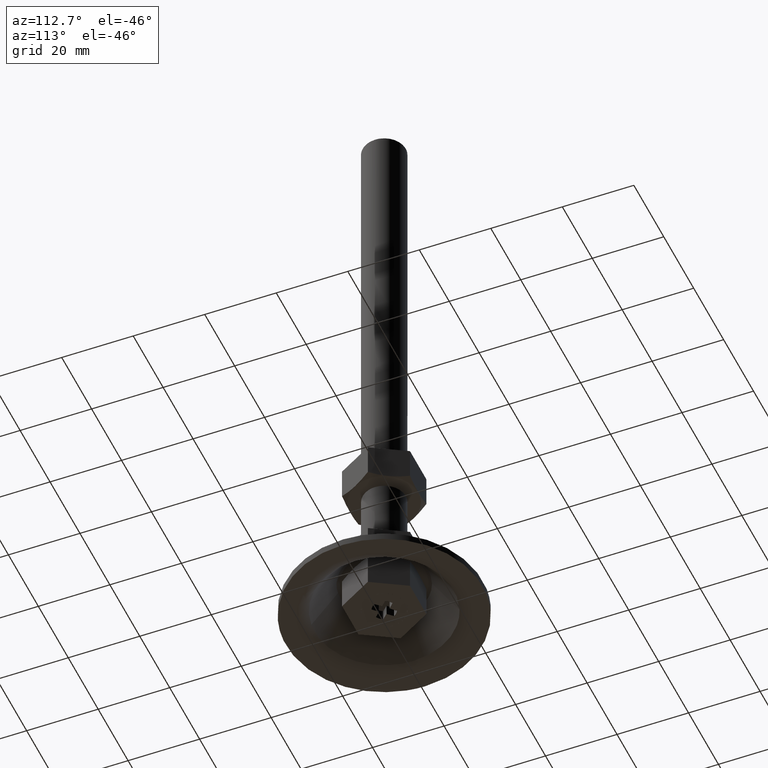
[diagram: clean part render]
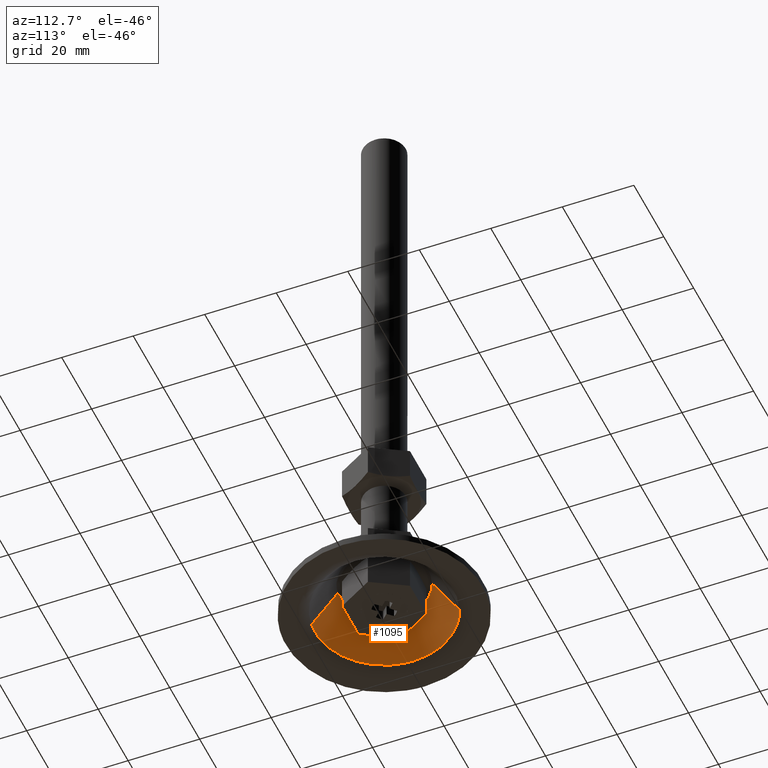
[diagram: same view with one face highlighted and labeled with its STEP entity id]
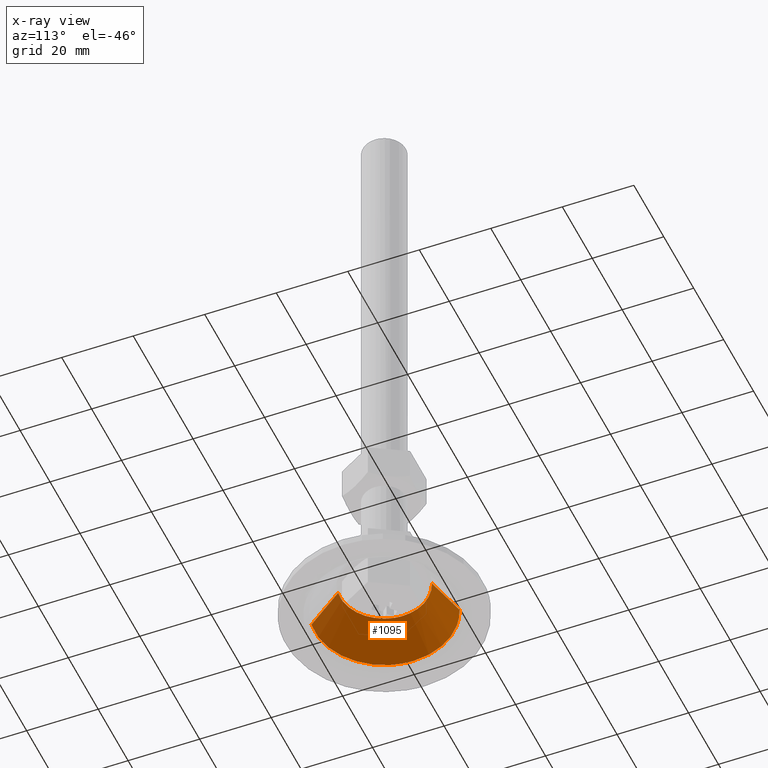
[diagram: x-ray of the same camera — body ghosted, the highlighted face saturated]
A machine part, auxiliary view. The second image highlights one B-rep face of the part: STEP entity #1095.
The next image is the same camera in x-ray: the body ghosted, the highlighted face saturated — about 0% of this face is hidden behind the body in this view.
In plain terms, the highlighted face is a freeform B-spline surface patch.
Its self-contained STEP definition (entity closure, byte-faithful):
#997=CARTESIAN_POINT('',(1.682526031742488,-12.030653286395976,11.830939502940549));
#998=CARTESIAN_POINT('',(-7.795100872382045,-13.356130266383781,11.830939502940550));
#999=CARTESIAN_POINT('',(-11.302467844174160,-4.452160484121229,11.830939502940550));
#1000=CARTESIAN_POINT('',(-15.754628328295388,6.850307360052929,11.830939502940550));
#1001=CARTESIAN_POINT('',(-4.452160484121229,11.302467844174160,11.830939502940550));
#1002=CARTESIAN_POINT('',(2.718011938334375,-19.434741954346549,1.413691436724982));
#1003=CARTESIAN_POINT('',(-12.592481086139779,-21.575964252026658,1.413691436724982));
#1004=CARTESIAN_POINT('',(-18.258405488853381,-7.192177190084702,1.413691436724982));
#1005=CARTESIAN_POINT('',(-25.450582678938087,11.066228298768682,1.413691436724982));
#1006=CARTESIAN_POINT('',(-7.192177190084702,18.258405488853381,1.413691436724982));
#1014=(BOUNDED_SURFACE()B_SPLINE_SURFACE(2,1,((#997,#1002),(#998,#1003),(#999,#1004),(#1000,#1005),(#1001,#1006)),.UNSPECIFIED.,.F.,.F.,.U.)B_SPLINE_SURFACE_WITH_KNOTS((3,2,3),(2,2),(0.0,27.311687700147530,59.825601628894589),(0.0,12.822317159495650),.UNSPECIFIED.)GEOMETRIC_REPRESENTATION_ITEM()RATIONAL_B_SPLINE_SURFACE(((0.921270302782944,0.921270302782944),(0.753969696196700,0.753969696196700),(1.0,1.0),(0.707106781186548,0.707106781186548),(1.0,1.0)))REPRESENTATION_ITEM('')SURFACE());
#1015=CARTESIAN_POINT('',(1.707165792147014,-12.206836241767570,11.583057334839481));
#1016=VERTEX_POINT('',#1015);
#1017=CARTESIAN_POINT('',(-12.325634509994600,0.0,11.583057334909320));
#1018=VERTEX_POINT('',#1017);
#1019=CARTESIAN_POINT('',(1.707165792147014,-12.206836241767574,11.583057334839486));
#1020=CARTESIAN_POINT('',(0.857716363780205,-12.325634509994595,11.583057334909324));
#1021=CARTESIAN_POINT('',(0.0,-12.325634509994600,11.583057334909320));
#1022=CARTESIAN_POINT('',(-12.325634509994600,-12.325634509994600,11.583057334909320));
#1023=CARTESIAN_POINT('',(-12.325634509994600,0.0,11.583057334909320));
#1031=(BOUNDED_CURVE()B_SPLINE_CURVE(2,(#1019,#1020,#1021,#1022,#1023),.UNSPECIFIED.,.F.,.U.)B_SPLINE_CURVE_WITH_KNOTS((3,2,3),(0.726086221373408,0.750000000000000,1.0),.UNSPECIFIED.)CURVE()GEOMETRIC_REPRESENTATION_ITEM()RATIONAL_B_SPLINE_CURVE((0.949326419103664,0.971983265616261,1.0,0.707106781186548,1.0))REPRESENTATION_ITEM(''));
#1032=EDGE_CURVE('',#1016,#1018,#1031,.T.);
#1033=ORIENTED_EDGE('',*,*,#1032,.F.);
#1034=CARTESIAN_POINT('',(2.692756184340162,-19.254154424129322,1.667770660266253));
#1035=VERTEX_POINT('',#1034);
#1036=CARTESIAN_POINT('',(1.707165792147014,-12.206836241767570,11.583057334839481));
#1037=CARTESIAN_POINT('',(2.692756184340162,-19.254154424129322,1.667770660266253));
#1038=QUASI_UNIFORM_CURVE('',1,(#1036,#1037),.UNSPECIFIED.,.F.,.U.);
#1039=EDGE_CURVE('',#1016,#1035,#1038,.T.);
#1040=ORIENTED_EDGE('',*,*,#1039,.T.);
#1041=CARTESIAN_POINT('',(-19.441537965244699,0.0,1.667770660362670));
#1042=VERTEX_POINT('',#1041);
#1043=CARTESIAN_POINT('',(2.692756184340162,-19.254154424129315,1.667770660266252));
#1044=CARTESIAN_POINT('',(1.352897915941509,-19.441537965244706,1.667770660362671));
#1045=CARTESIAN_POINT('',(0.0,-19.441537965244699,1.667770660362670));
#1046=CARTESIAN_POINT('',(-19.441537965244702,-19.441537965244702,1.667770660362670));
#1047=CARTESIAN_POINT('',(-19.441537965244699,0.0,1.667770660362670));
#1055=(BOUNDED_CURVE()B_SPLINE_CURVE(2,(#1043,#1044,#1045,#1046,#1047),.UNSPECIFIED.,.F.,.U.)B_SPLINE_CURVE_WITH_KNOTS((3,2,3),(0.726086221385418,0.750000000000000,1.0),.UNSPECIFIED.)CURVE()GEOMETRIC_REPRESENTATION_ITEM()RATIONAL_B_SPLINE_CURVE((0.949326419126421,0.971983265630332,1.0,0.707106781186547,1.0))REPRESENTATION_ITEM(''));
#1056=EDGE_CURVE('',#1035,#1042,#1055,.T.);
#1057=ORIENTED_EDGE('',*,*,#1056,.T.);
#1058=CARTESIAN_POINT('',(-7.125347513725089,18.088748471436642,1.667770660355556));
#1059=VERTEX_POINT('',#1058);
#1060=CARTESIAN_POINT('',(-19.441537965244699,0.0,1.667770660362670));
#1061=CARTESIAN_POINT('',(-19.441537965244702,13.237272032823833,1.667770660362671));
#1062=CARTESIAN_POINT('',(-7.125347513725090,18.088748471436634,1.667770660355556));
#1070=(BOUNDED_CURVE()B_SPLINE_CURVE(2,(#1060,#1061,#1062),.UNSPECIFIED.,.F.,.U.)B_SPLINE_CURVE_WITH_KNOTS((3,3),(0.0,0.187769642891689),.UNSPECIFIED.)CURVE()GEOMETRIC_REPRESENTATION_ITEM()RATIONAL_B_SPLINE_CURVE((1.0,0.780014179592003,0.890481630697964))REPRESENTATION_ITEM(''));
#1071=EDGE_CURVE('',#1042,#1059,#1070,.T.);
#1072=ORIENTED_EDGE('',*,*,#1071,.T.);
#1073=CARTESIAN_POINT('',(-4.517360168078701,11.467986884621441,11.583057334908000));
#1074=VERTEX_POINT('',#1073);
#1075=CARTESIAN_POINT('',(-4.517360168078701,11.467986884621441,11.583057334908000));
#1076=CARTESIAN_POINT('',(-7.125347513725089,18.088748471436642,1.667770660355556));
#1077=QUASI_UNIFORM_CURVE('',1,(#1075,#1076),.UNSPECIFIED.,.F.,.U.);
#1078=EDGE_CURVE('',#1074,#1059,#1077,.T.);
#1079=ORIENTED_EDGE('',*,*,#1078,.F.);
#1080=CARTESIAN_POINT('',(-12.325634509994600,0.0,11.583057334909320));
#1081=CARTESIAN_POINT('',(-12.325634509994599,8.392225824848637,11.583057334909320));
#1082=CARTESIAN_POINT('',(-4.517360168078700,11.467986884621435,11.583057334908000));
#1090=(BOUNDED_CURVE()B_SPLINE_CURVE(2,(#1080,#1081,#1082),.UNSPECIFIED.,.F.,.U.)B_SPLINE_CURVE_WITH_KNOTS((3,3),(0.0,0.187769642892355),.UNSPECIFIED.)CURVE()GEOMETRIC_REPRESENTATION_ITEM()RATIONAL_B_SPLINE_CURVE((1.0,0.780014179591223,0.890481630698748))REPRESENTATION_ITEM(''));
#1091=EDGE_CURVE('',#1018,#1074,#1090,.T.);
#1092=ORIENTED_EDGE('',*,*,#1091,.F.);
#1093=EDGE_LOOP('',(#1033,#1040,#1057,#1072,#1079,#1092));
#1094=FACE_OUTER_BOUND('',#1093,.T.);
#1095=ADVANCED_FACE('',(#1094),#1014,.F.);